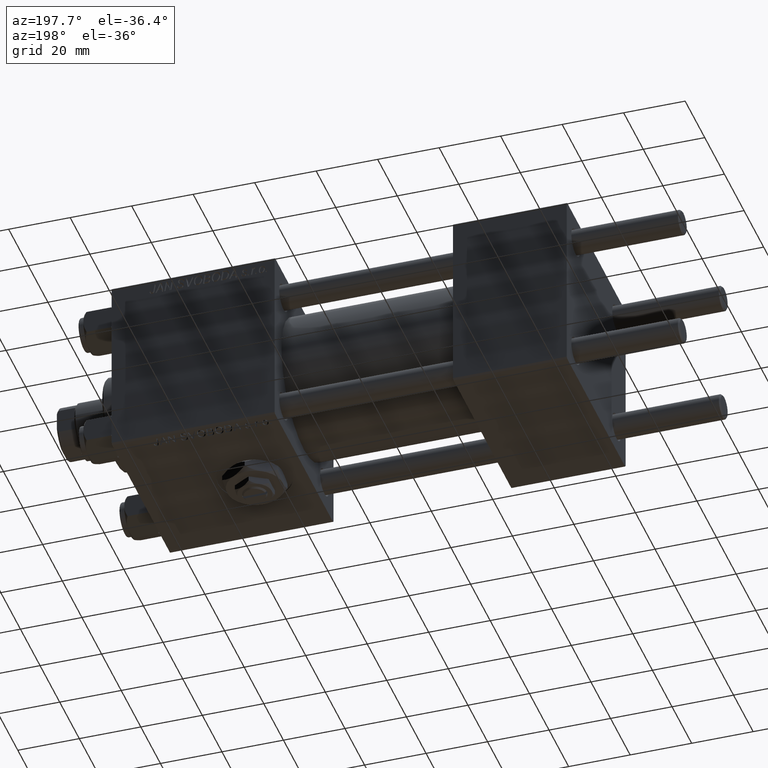
[diagram: clean part render]
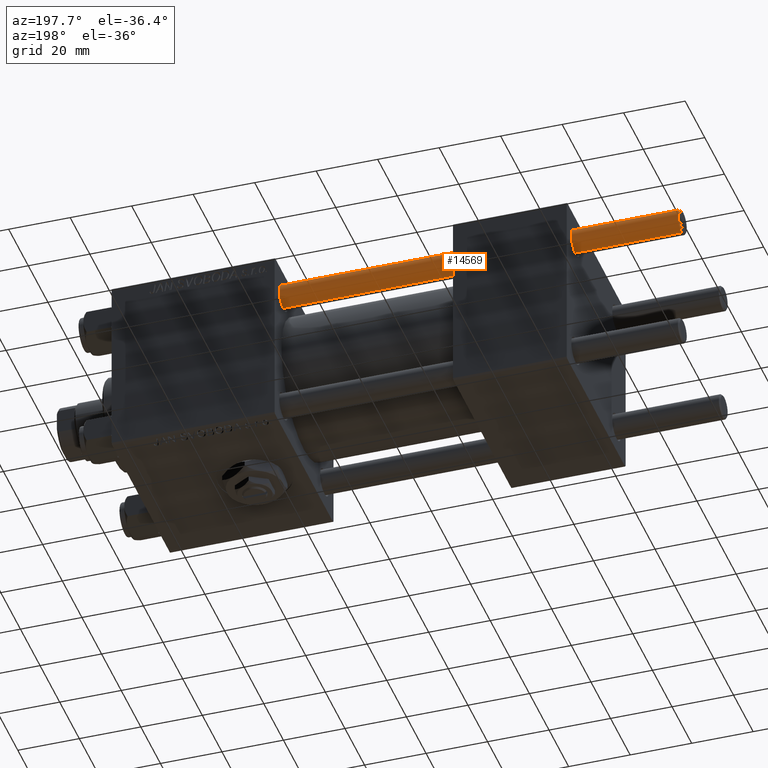
[diagram: same view with one face highlighted and labeled with its STEP entity id]
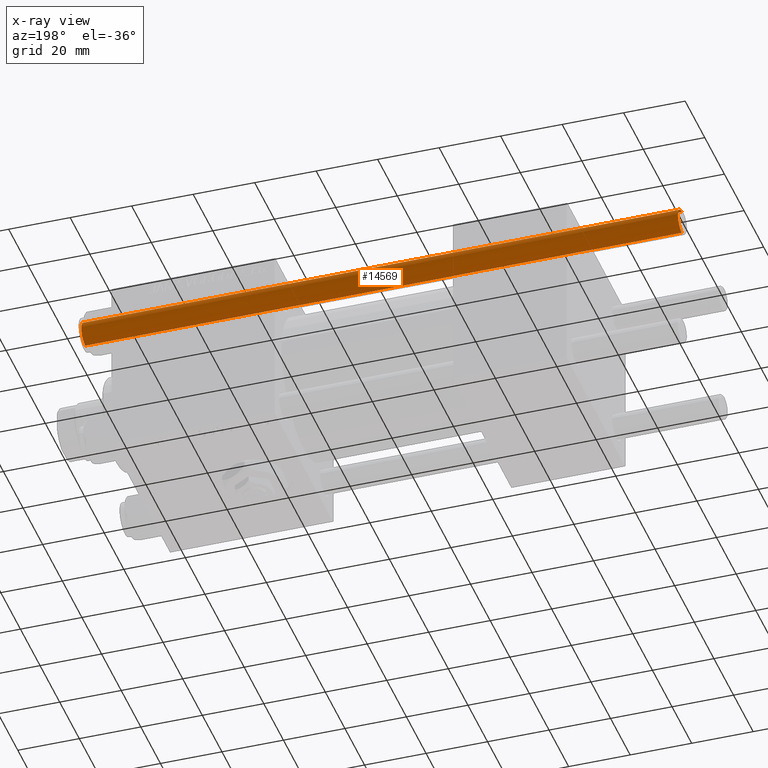
[diagram: x-ray of the same camera — body ghosted, the highlighted face saturated]
A machine part, auxiliary view. The second image highlights one B-rep face of the part: STEP entity #14569.
The next image is the same camera in x-ray: the body ghosted, the highlighted face saturated — about 0% of this face is hidden behind the body in this view.
In plain terms, the highlighted cylindrical surface (edge-blend (fillet) strip) has radius 4 mm, axis along (-1, -0, -0).
Its self-contained STEP definition (entity closure, byte-faithful):
#479 = CARTESIAN_POINT ( 'NONE',  ( 4.000000000000000000, 4.898587196589412829E-16, 194.5000000000000568 ) ) ;
#514 = DIRECTION ( 'NONE',  ( -0.000000000000000000, -0.000000000000000000, -1.000000000000000000 ) ) ;
#1147 = CARTESIAN_POINT ( 'NONE',  ( -4.000000000000000000, 0.000000000000000000, 0.5000000000000004441 ) ) ;
#2146 = LINE ( 'NONE', #10222, #21801 ) ;
#6930 = CARTESIAN_POINT ( 'NONE',  ( 0.000000000000000000, 0.000000000000000000, 194.5000000000000568 ) ) ;
#7890 = VERTEX_POINT ( 'NONE', #13259 ) ;
#8603 = CARTESIAN_POINT ( 'NONE',  ( 0.000000000000000000, 0.000000000000000000, 195.0000000000000000 ) ) ;
#8920 = ORIENTED_EDGE ( 'NONE', *, *, #46151, .T. ) ;
#9538 = DIRECTION ( 'NONE',  ( 1.000000000000000000, 0.000000000000000000, 0.000000000000000000 ) ) ;
#10222 = CARTESIAN_POINT ( 'NONE',  ( 4.000000000000000000, 4.898587196589412829E-16, 195.0000000000000000 ) ) ;
#12058 = EDGE_LOOP ( 'NONE', ( #32859, #8920, #15524, #33751 ) ) ;
#13259 = CARTESIAN_POINT ( 'NONE',  ( 4.000000000000000000, 4.898587196589412829E-16, 0.5000000000000004441 ) ) ;
#14491 = DIRECTION ( 'NONE',  ( -0.000000000000000000, -0.000000000000000000, 1.000000000000000000 ) ) ;
#14569 = ADVANCED_FACE ( 'NONE', ( #40943 ), #32849, .T. ) ;
#15524 = ORIENTED_EDGE ( 'NONE', *, *, #23240, .T. ) ;
#16427 = DIRECTION ( 'NONE',  ( -1.000000000000000000, 0.000000000000000000, 0.000000000000000000 ) ) ;
#19155 = VERTEX_POINT ( 'NONE', #1147 ) ;
#20998 = LINE ( 'NONE', #36379, #39180 ) ;
#21061 = AXIS2_PLACEMENT_3D ( 'NONE', #8603, #514, #16427 ) ;
#21366 = AXIS2_PLACEMENT_3D ( 'NONE', #30131, #14491, #9538 ) ;
#21801 = VECTOR ( 'NONE', #33951, 1000.000000000000000 ) ;
#23240 = EDGE_CURVE ( 'NONE', #7890, #19155, #42216, .T. ) ;
#28559 = DIRECTION ( 'NONE',  ( -0.000000000000000000, -0.000000000000000000, -1.000000000000000000 ) ) ;
#30131 = CARTESIAN_POINT ( 'NONE',  ( 0.000000000000000000, 0.000000000000000000, 0.5000000000000004441 ) ) ;
#31614 = AXIS2_PLACEMENT_3D ( 'NONE', #6930, #43166, #50479 ) ;
#32849 = CYLINDRICAL_SURFACE ( 'NONE', #21061, 4.000000000000000000 ) ;
#32859 = ORIENTED_EDGE ( 'NONE', *, *, #37449, .T. ) ;
#33751 = ORIENTED_EDGE ( 'NONE', *, *, #42421, .F. ) ;
#33777 = CARTESIAN_POINT ( 'NONE',  ( -4.000000000000000000, 0.000000000000000000, 194.5000000000000568 ) ) ;
#33951 = DIRECTION ( 'NONE',  ( -0.000000000000000000, -0.000000000000000000, -1.000000000000000000 ) ) ;
#36379 = CARTESIAN_POINT ( 'NONE',  ( -4.000000000000000000, 0.000000000000000000, 195.0000000000000000 ) ) ;
#37449 = EDGE_CURVE ( 'NONE', #47619, #51532, #51626, .T. ) ;
#39180 = VECTOR ( 'NONE', #28559, 1000.000000000000000 ) ;
#40943 = FACE_OUTER_BOUND ( 'NONE', #12058, .T. ) ;
#42216 = CIRCLE ( 'NONE', #21366, 4.000000000000000000 ) ;
#42421 = EDGE_CURVE ( 'NONE', #47619, #19155, #20998, .T. ) ;
#43166 = DIRECTION ( 'NONE',  ( 0.000000000000000000, 0.000000000000000000, -1.000000000000000000 ) ) ;
#46151 = EDGE_CURVE ( 'NONE', #51532, #7890, #2146, .T. ) ;
#47619 = VERTEX_POINT ( 'NONE', #33777 ) ;
#50479 = DIRECTION ( 'NONE',  ( 1.000000000000000000, 0.000000000000000000, 0.000000000000000000 ) ) ;
#51532 = VERTEX_POINT ( 'NONE', #479 ) ;
#51626 = CIRCLE ( 'NONE', #31614, 4.000000000000000000 ) ;